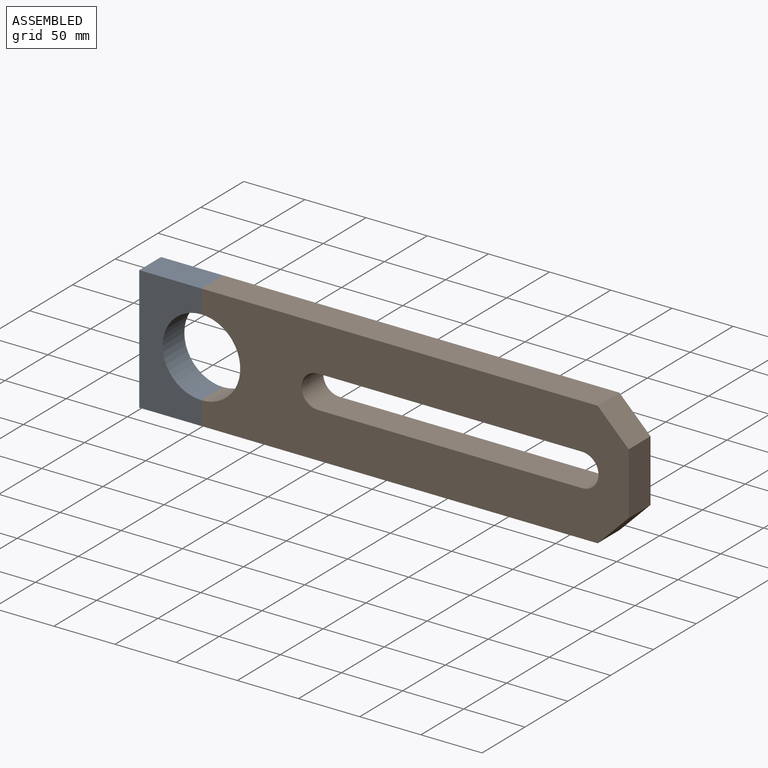
[diagram: assembled view]
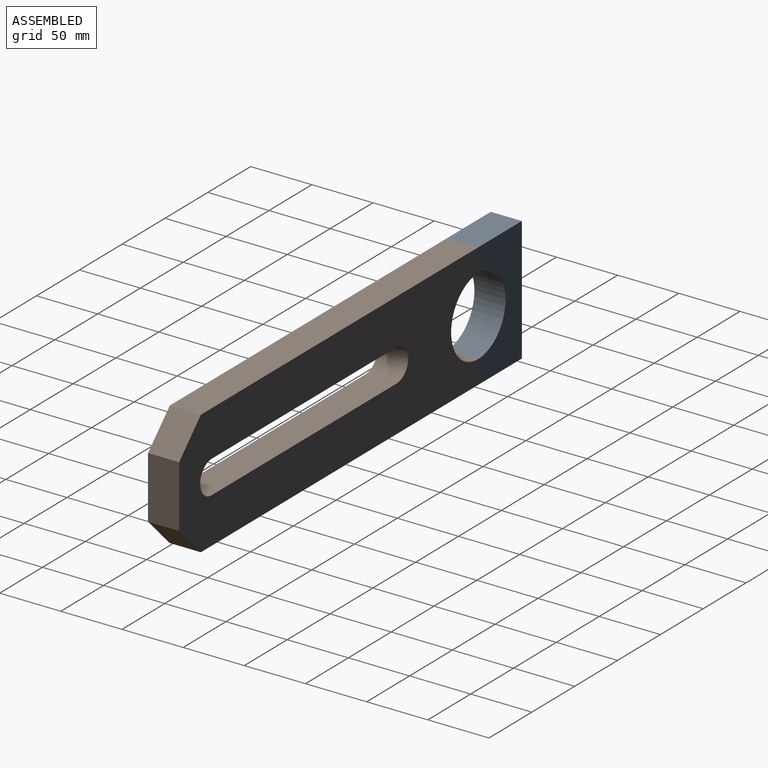
[diagram: assembled view, second angle]
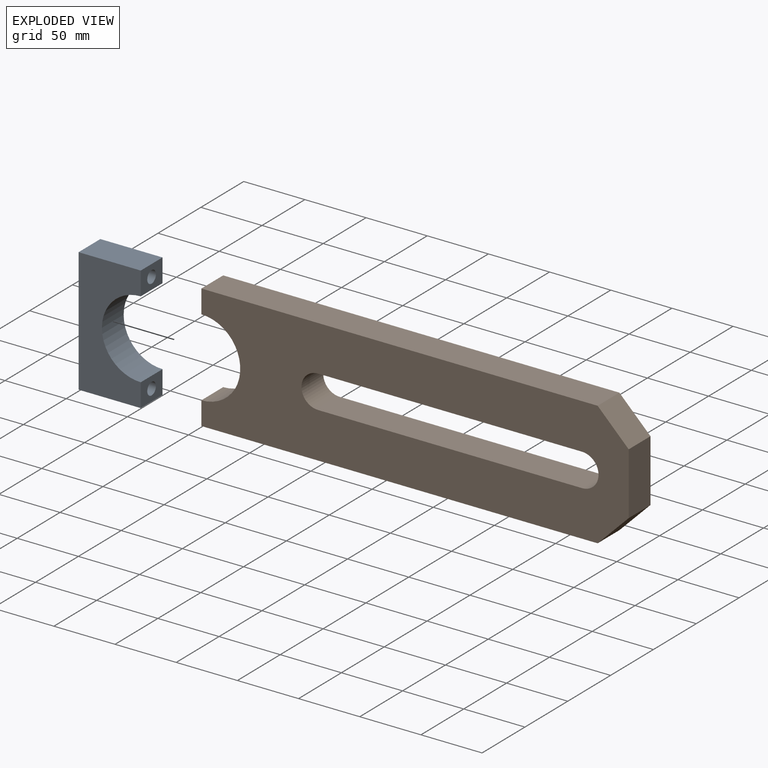
[diagram: exploded view]
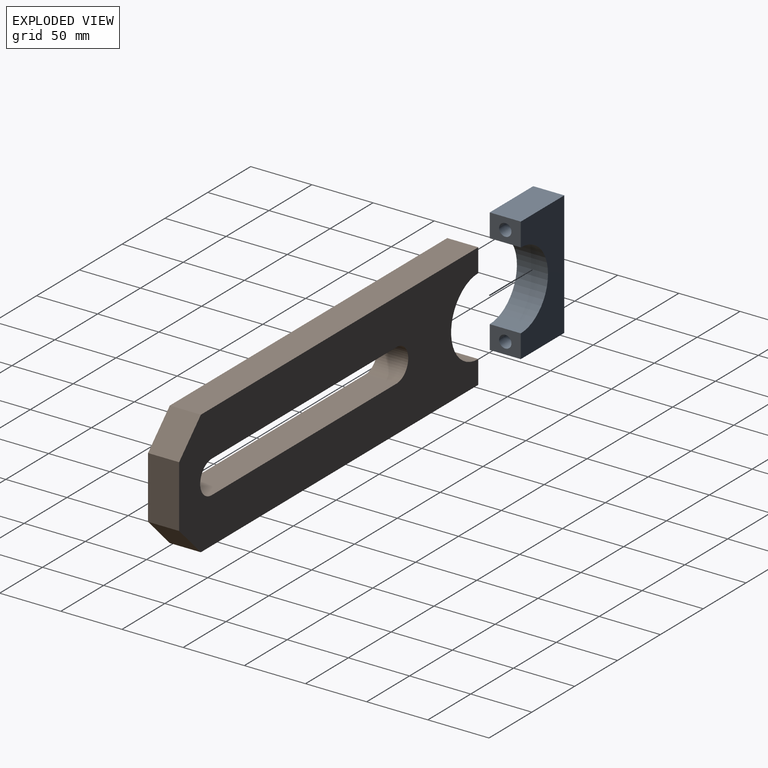
[diagram: exploded view, second angle]
ASSEMBLY  parts=2 mates=2
PART A: 14 faces, bbox 50.8x25.4x101.6 mm
  f0: plane 50.8x25.4mm, normal (0,0,1), area 1290.3mm2, adj f1,f5,f6,f7
  f1: plane 101.6x25.4mm, normal (-1,0,0), area 2184.8mm2, adj f0,f2,f6,f7,f10,f13
  f2: plane 50.8x25.4mm, normal (0,0,-1), area 1290.3mm2, adj f1,f3,f6,f7
  f3: plane 25.4x19.05mm, normal (1,0,0), area 404mm2, adj f2,f4,f6,f7,f11
  f4: cylinder r=31.75mm len=63.5mm, axis (0,-1,0), area 2533.5mm2, adj f3,f5,f6,f7
  f5: plane 25.4x19.05mm, normal (1,0,0), area 404mm2, adj f0,f4,f6,f7,f8
  f6: plane 101.6x50.8mm, normal (0,1,0), area 3577.8mm2, adj f0,f1,f2,f3,f4,f5
  f7: plane 101.6x50.8mm, normal (0,-1,0), area 3577.8mm2, adj f0,f1,f2,f3,f4,f5
  f8: cylinder r=5.04mm len=41.28mm, axis (-1,0,0), area 1307.6mm2, adj f5,f9
  f9: plane 15.88x15.88mm, normal (-1,0,0), area 118.1mm2, adj f8,f10
  f10: cylinder r=7.94mm len=15.88mm, axis (-1,0,0), area 475mm2, adj f1,f9
  f11: cylinder r=5.04mm len=41.28mm, axis (-1,0,0), area 1307.6mm2, adj f3,f12
  f12: plane 15.88x15.88mm, normal (-1,0,0), area 118.1mm2, adj f11,f13
  f13: cylinder r=7.94mm len=15.88mm, axis (-1,0,0), area 475mm2, adj f1,f12
PART B: 20 faces, bbox 349.3x25.4x101.6 mm
  f0: cylinder r=13.46mm len=26.92mm, axis (0,-1,0), area 1074.2mm2, adj f1,f9,f10,f11
  f1: plane 215.9x25.4mm, normal (0,0,-1), area 5483.9mm2, adj f0,f2,f10,f11
  f2: cylinder r=13.46mm len=26.92mm, axis (0,-1,0), area 1074.2mm2, adj f1,f9,f10,f11
  f3: plane 323.85x25.4mm, normal (0,0,1), area 8225.8mm2, adj f4,f10,f11,f13
  f4: plane 25.4x19.05mm, normal (-1,0,0), area 404mm2, adj f3,f5,f10,f11,f14
  f5: cylinder r=31.75mm len=63.5mm, axis (0,-1,0), area 2533.5mm2, adj f4,f6,f10,f11
  f6: plane 25.4x19.05mm, normal (-1,0,0), area 404mm2, adj f5,f7,f10,f11,f15
  f7: plane 323.85x25.4mm, normal (0,0,-1), area 8225.8mm2, adj f6,f10,f11,f12
  f8: plane 50.8x25.4mm, normal (1,0,0), area 1290.3mm2, adj f10,f11,f12,f13
  f9: plane 215.9x25.4mm, normal (0,0,1), area 5483.9mm2, adj f0,f2,f10,f11
  f10: plane 349.25x101.6mm, normal (0,1,0), area 26873mm2, adj f0,f1,f2,f3,f4,f5,f6,f7
  f11: plane 349.25x101.6mm, normal (0,-1,0), area 26873mm2, adj f0,f1,f2,f3,f4,f5,f6,f7
  f12: plane 25.4x25.4mm, normal (0.71,0,-0.71), area 912.4mm2, adj f7,f8,f10,f11
  f13: plane 25.4x25.4mm, normal (0.71,0,0.71), area 912.4mm2, adj f3,f8,f10,f11
  f14: cone r=0mm half-angle=59deg, axis (-1,0,0), area 35.4mm2, adj f4,f17
  f15: cone r=0mm half-angle=59deg, axis (-1,0,0), area 35.4mm2, adj f6,f19
  f16: cone r=0mm half-angle=59deg, axis (-1,0,0), area 57.7mm2, adj f17
  f17: cylinder r=3.97mm len=29.52mm, axis (-1,0,0), area 736.1mm2, adj f14,f16
  f18: cone r=0mm half-angle=59deg, axis (-1,0,0), area 57.7mm2, adj f19
  f19: cylinder r=3.97mm len=29.52mm, axis (-1,0,0), area 736.1mm2, adj f15,f18
PLACE A rot(axis=(1,0,0),180deg) t=(-3.41,30.87,-18.33)mm
PLACE B t=(-3.41,5.47,-15.11)mm
MATE cylindrical A.f4 <-> B.f5  axis (0,1,0) through (206.71,18.17,-16.72)mm
MATE planar A.f4 <-> B.f5  axis (0,-1,0) through (206.71,5.47,-16.72)mm
